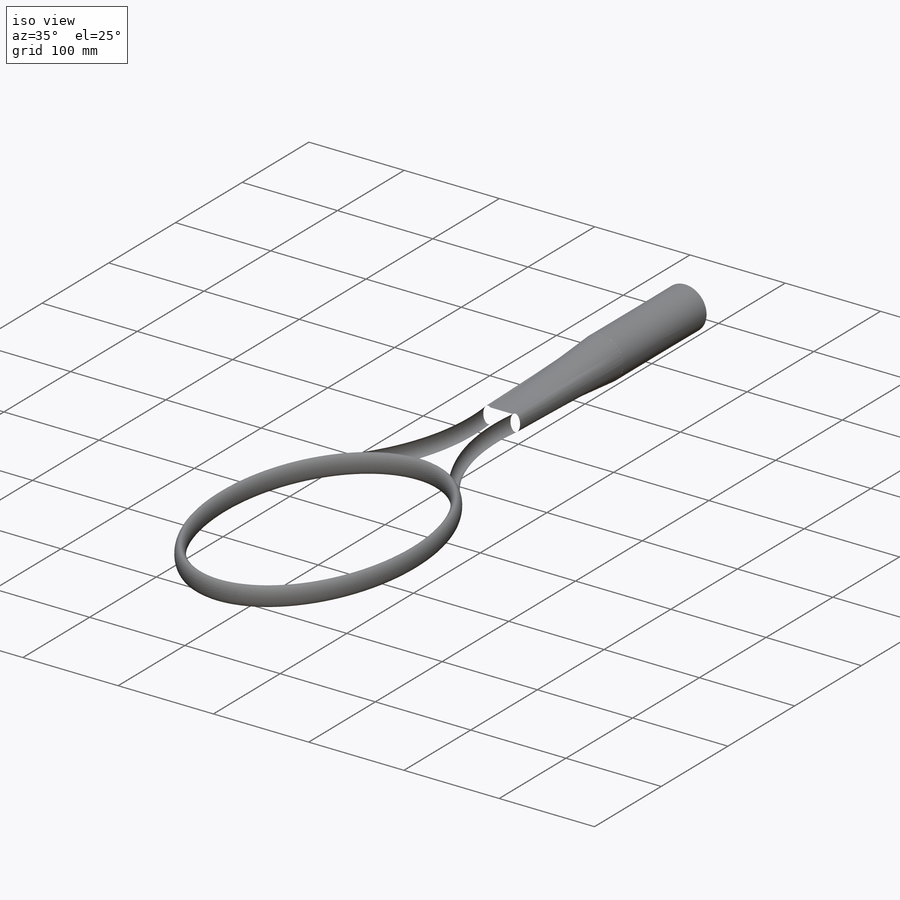
[diagram: iso view]
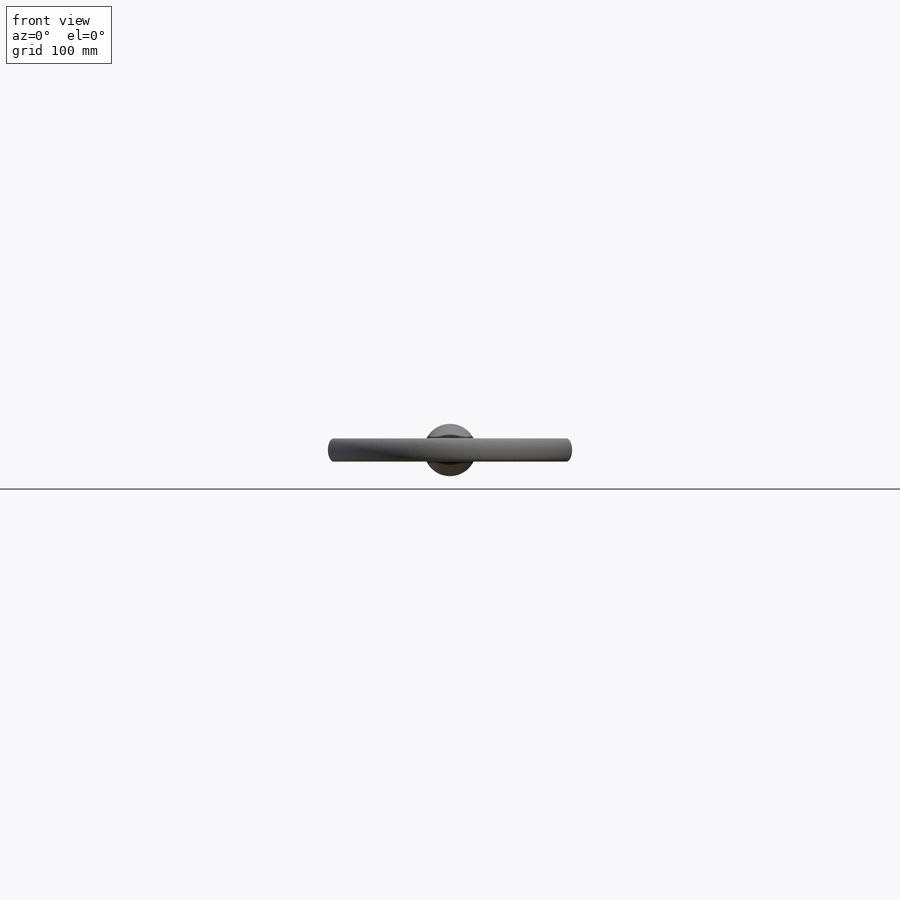
[diagram: front view]
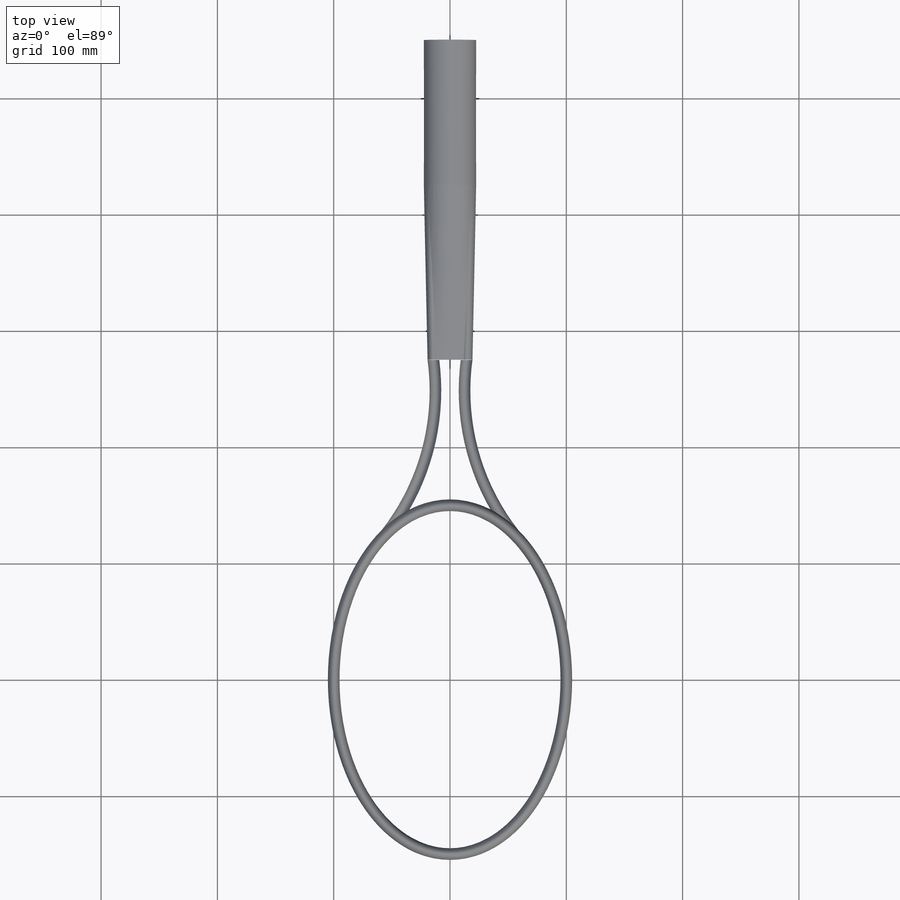
[diagram: top view]
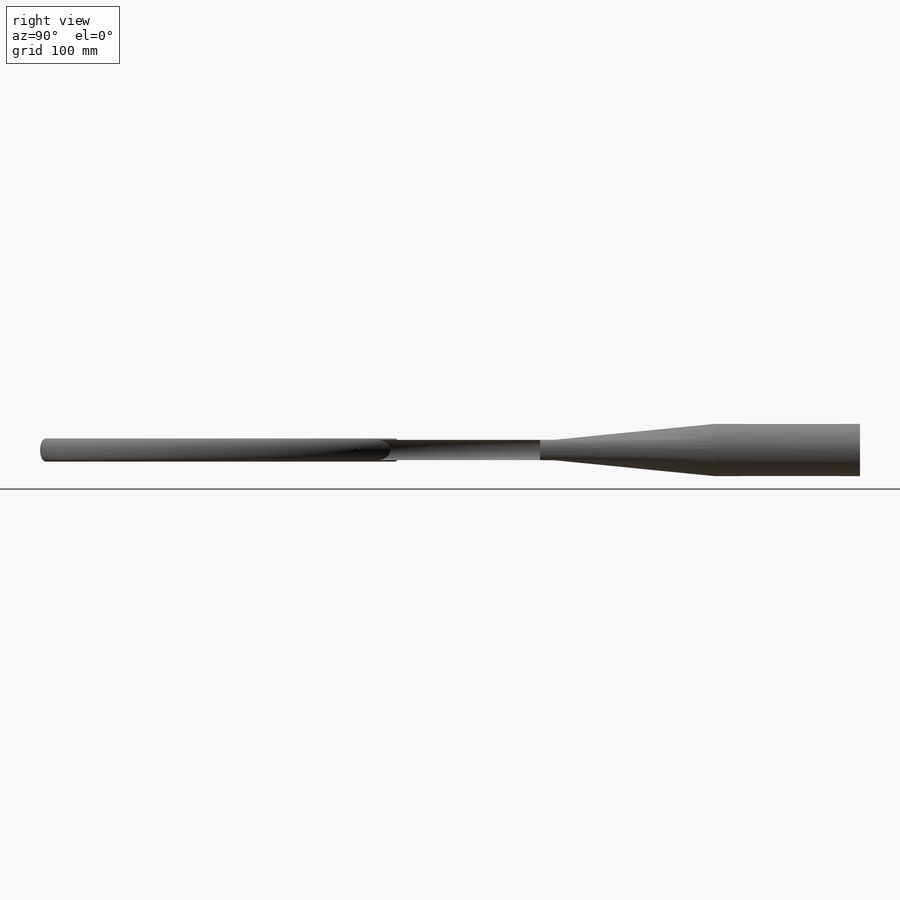
[diagram: right view]
SOLIDWORKS PART (.sldprt)
format: sldprt  version: not decoded by parser v0  size: 391,168 bytes
history: native  units: mm
features: sketch x9, plane x5, mirror x2, material x1 (+11 scaffold rows collapsed)
feature tree (28):
  scaffold x11  (default folders/planes/origin — collapsed)
  material  "Material <not specified>"
  sketch  "Sketch1"  dims[D1=300.0mm D2=200.0mm]
  plane  "Plane1"
  sketch  "Sketch2"  dims[D1=10.0mm D2=20.0mm]
  sketch  "Sketch3"  dims[D4=200.0mm D2=15.0mm D3=55.0mm D5=280.0mm D1=0.0mm]
  plane  "Plane2"
  sketch  "Sketch4"  dims[D1=17.5mm D2=10.0mm]
  mirror  "Mirror1"
  sketch  "Sketch5"  dims[D1=275.0mm]
  plane  "Plane3"  Offset=275mm
  sketch  "Sketch6"  dims[D1=23.5mm D2=~7.581754mm]
  plane  "Plane4"  Offset=150mm
  sketch  "Sketch7"  dims[D1=45.0mm]
  plane  "Plane5"  Offset=125mm
  sketch  "Sketch8"  dims[D1=45.0mm]
  sketch  "Sketch9"
  mirror  "Surface-Loft2"
decode coverage: 8 of 11 modeling features carry decoded parameters
note: ~ marks probable driven/reference dimensions
note: suppression state not decoded; provenance and decode notes live in map.json
